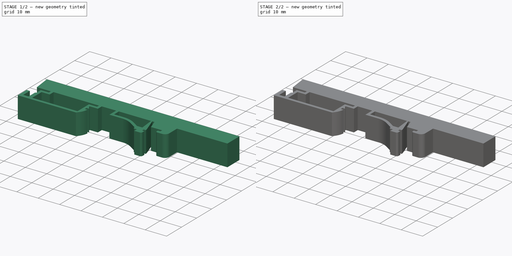
[diagram: build sequence overview — one tinted view per stage of 2, left to right]
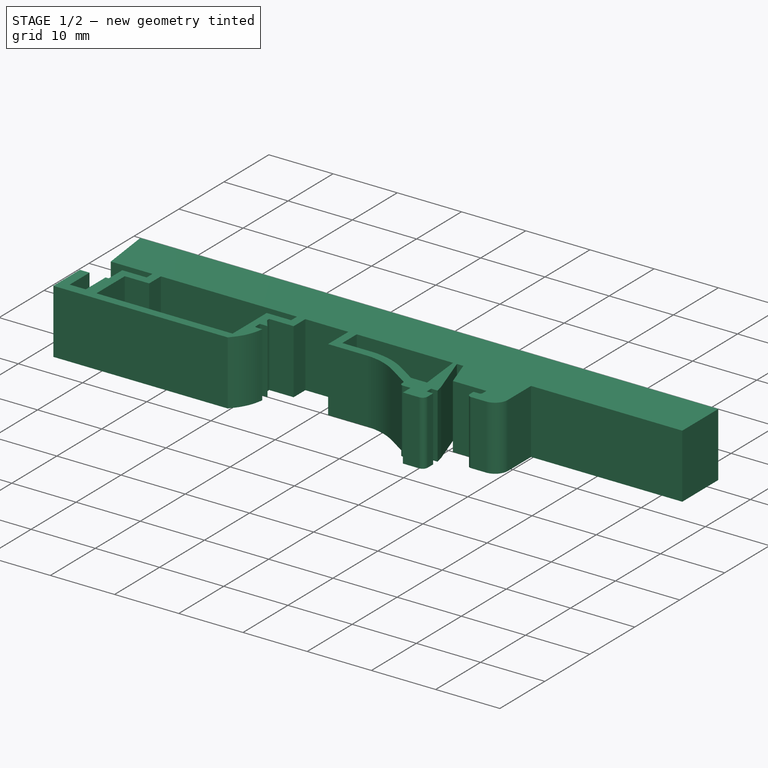
[diagram: stage 1 of 2 — iso view after this stage's code; geometry added in this stage tinted green]
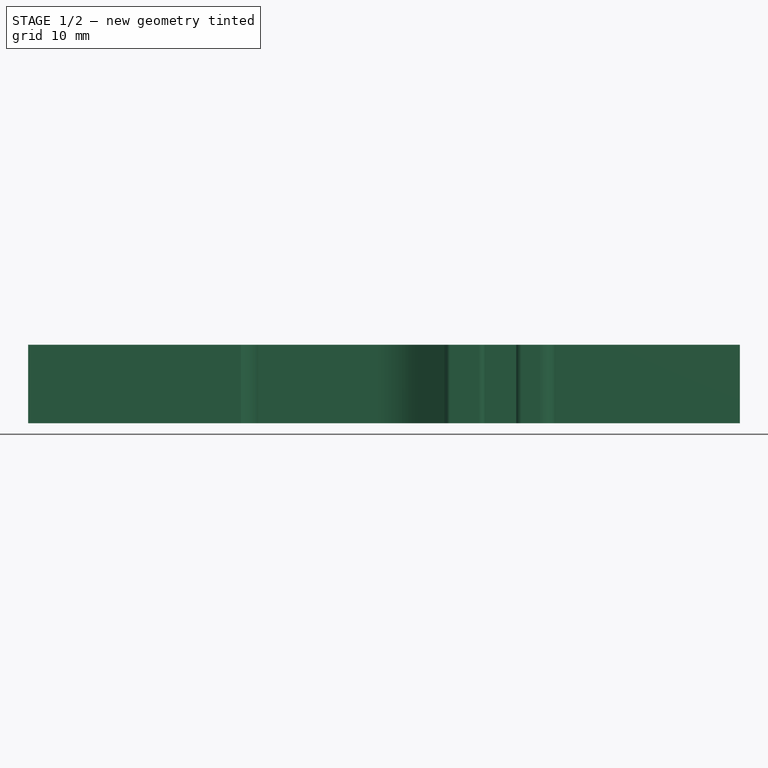
[diagram: stage 1 of 2 — front view after this stage's code; geometry added in this stage tinted green]
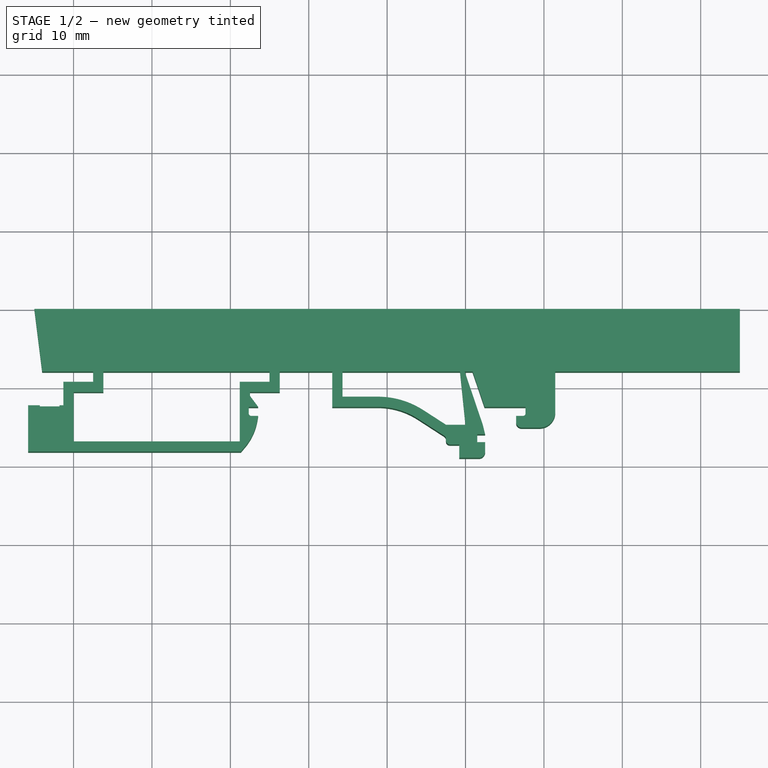
[diagram: stage 1 of 2 — top view after this stage's code; geometry added in this stage tinted green]
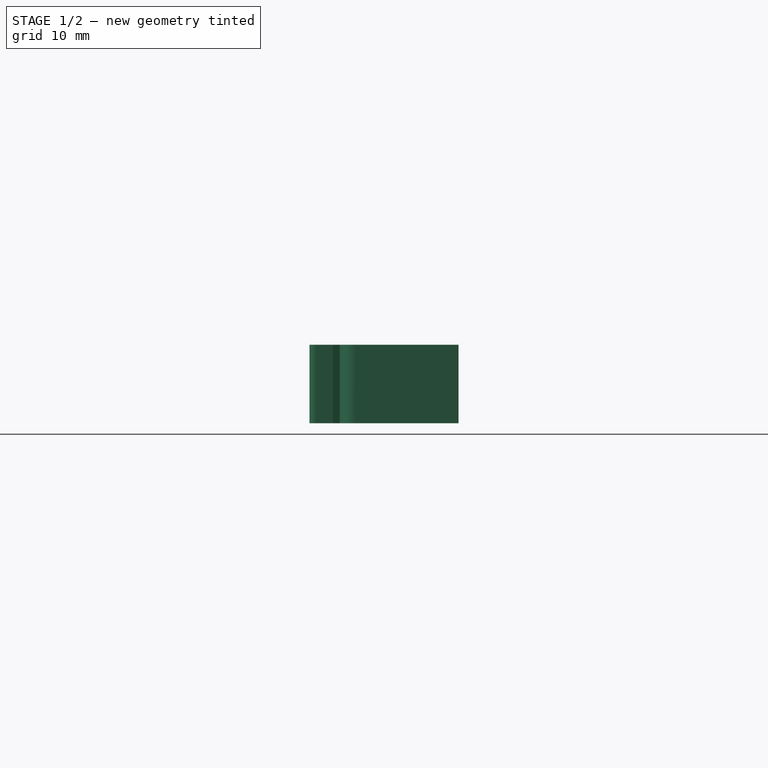
[diagram: stage 1 of 2 — right view after this stage's code; geometry added in this stage tinted green]
FCSTD DOCUMENT  (FreeCAD 1.0R38641 +468 (Git))
Label: PCB-adapter-90
License: All rights reserved
LicenseURL: https://en.wikipedia.org/wiki/All_rights_reserved
objects: Sketcher::SketchObject×3, PartDesign::SubShapeBinder×1, PartDesign::Pad×1, PartDesign::Pocket×1, PartDesign::Hole×1, PartDesign::Body×1
note: 17 computed .brp shape members not serialized (recipe doc carries the construction recipe); baked Part::Feature solids carry a one-line shape summary decoded from their .brp
EXTERNAL_REF file=DIN-rail.FCStd obj=Body
EXTERNAL_REF file=DIN-rail.FCStd obj=Sketch

FEATURE [PartDesign::SubShapeBinder] Binder
  BindCopyOnChange = 0
  BindMode = 0
  ClaimChildren = false
  Context = -> <external DIN-rail.FCStd>#Body [Binder.]
  Fuse = false
  MakeFace = true
  OffsetFill = false
  OffsetIntersection = false
  OffsetJoinType = 0
  OffsetOpenResult = false
  PartialLoad = false
  Refine = true
  Relative = true
  Support = -> [<external DIN-rail.FCStd>#Sketch]
  _Version = 2
FEATURE [Sketcher::SketchObject] Sketch
  ArcFitTolerance = 1e-06
  AttachmentSupport = -> [XY_Plane]
  ExternalGeometry = -> [Binder]
  FullyConstrained = false
  MakeInternals = false
  MapMode = 5
  sketch-geometry (80):
    g0: LineSegment StartX=45 StartY=12 StartZ=0 EndX=45 EndY=20 EndZ=0
    g1: LineSegment StartX=45 StartY=20 StartZ=0 EndX=-45 EndY=20 EndZ=0
    g2: LineSegment StartX=-45 StartY=20 StartZ=0 EndX=-44 EndY=12 EndZ=0
    g3: LineSegment StartX=-44 StartY=12 StartZ=0 EndX=-37.5 EndY=12 EndZ=0
    g4: LineSegment StartX=-37.5 StartY=12 StartZ=0 EndX=-37.5 EndY=10.7 EndZ=0
    g5: LineSegment StartX=-37.5 StartY=10.7 StartZ=0 EndX=-41.3 EndY=10.7 EndZ=0
    g6: LineSegment StartX=-41.3 StartY=10.7 StartZ=0 EndX=-41.3 EndY=7.7 EndZ=0
    g7: LineSegment StartX=-41.3 StartY=7.7 StartZ=0 EndX=-45.8 EndY=7.7 EndZ=0
    g8: LineSegment StartX=-45.8 StartY=7.7 StartZ=0 EndX=-45.8 EndY=1.8 EndZ=0
    g9: LineSegment StartX=-16.45 StartY=6.35 StartZ=0 EndX=-17.35 EndY=6.35 EndZ=0
    g10: LineSegment StartX=-17.65 StartY=6.65 StartZ=0 EndX=-17.65 EndY=7.5 EndZ=0
    g11: LineSegment StartX=-17.65 StartY=7.5 StartZ=0 EndX=-16.45 EndY=7.5 EndZ=0
    g12: LineSegment StartX=-16.45 StartY=7.5 StartZ=0 EndX=-17.5 EndY=8.9 EndZ=0
    g13: LineSegment StartX=-17.5 StartY=8.9 StartZ=0 EndX=-17.5 EndY=9.4 EndZ=0
    g14: LineSegment StartX=-17.5 StartY=9.4 StartZ=0 EndX=-13.7 EndY=9.4 EndZ=0
    g15: LineSegment StartX=-13.7 StartY=9.4 StartZ=0 EndX=-13.7 EndY=12 EndZ=0
    g16: LineSegment StartX=-13.7 StartY=12 StartZ=0 EndX=-7 EndY=12 EndZ=0
    g17: LineSegment StartX=-16.45 StartY=6.35 StartZ=0 EndX=-16.5547 EndY=5.75604 EndZ=0
    g18: LineSegment StartX=-18.0861 StartY=2.47206 StartZ=0 EndX=-18.65 EndY=1.8 EndZ=0
    g19: ArcOfCircle CenterX=-23.4484 CenterY=6.97157 CenterZ=0 NormalX=0 NormalY=0 NormalZ=1 AngleXU=0 Radius=7 StartAngle=5.58505 EndAngle=6.10865
    g20: GeomPoint [constr] X=-16.8804 Y=3.90889 Z=0
    g21: ArcOfCircle CenterX=-17.35 CenterY=6.65 CenterZ=0 NormalX=0 NormalY=0 NormalZ=1 AngleXU=0 Radius=0.3 StartAngle=3.14159 EndAngle=4.71239
    g22: GeomPoint [constr] X=-17.65 Y=6.35 Z=0
    g23: LineSegment StartX=-7 StartY=12 StartZ=0 EndX=-7 EndY=7.5 EndZ=0
    g24: LineSegment StartX=-7 StartY=7.5 StartZ=0 EndX=-1.2 EndY=7.5 EndZ=0
    g25: LineSegment StartX=3.91224 StartY=5.99147 StartZ=0 EndX=7.27145 EndY=3.8199 EndZ=0
    g26: LineSegment StartX=7.5 StartY=3.4 StartZ=0 EndX=7.5 EndY=3.2 EndZ=0
    g27: LineSegment StartX=8 StartY=2.7 StartZ=0 EndX=9.2 EndY=2.7 EndZ=0
    g28: LineSegment StartX=9.2 StartY=2.7 StartZ=0 EndX=9.2 EndY=1 EndZ=0
    g29: LineSegment StartX=9.2 StartY=1 StartZ=0 EndX=11.7 EndY=1 EndZ=0
    g30: LineSegment StartX=12.5 StartY=1.8 StartZ=0 EndX=12.5 EndY=3 EndZ=0
    g31: LineSegment StartX=12.5 StartY=3 StartZ=0 EndX=11.5 EndY=3 EndZ=0
    g32: LineSegment StartX=11.5 StartY=3 StartZ=0 EndX=11.5 EndY=4 EndZ=0
    g33: LineSegment StartX=11.5 StartY=4 StartZ=0 EndX=12.5 EndY=4 EndZ=0
    g34: LineSegment StartX=12.5 StartY=4 StartZ=0 EndX=12.2 EndY=5.22014 EndZ=0
    g35: LineSegment StartX=12.2 StartY=5.22014 StartZ=0 EndX=9.9 EndY=12 EndZ=0
    g36: ArcOfCircle CenterX=11.7 CenterY=1.8 CenterZ=0 NormalX=0 NormalY=0 NormalZ=1 AngleXU=0 Radius=0.8 StartAngle=4.71239 EndAngle=6.28319
    g37: GeomPoint [constr] X=12.5 Y=1 Z=0
    g38: ArcOfCircle CenterX=8 CenterY=3.2 CenterZ=0 NormalX=0 NormalY=0 NormalZ=1 AngleXU=0 Radius=0.5 StartAngle=3.14159 EndAngle=4.71239
    g39: GeomPoint [constr] X=7.5 Y=2.7 Z=0
    g40: ArcOfCircle CenterX=7 CenterY=3.4 CenterZ=0 NormalX=0 NormalY=0 NormalZ=1 AngleXU=0 Radius=0.5 StartAngle=0 EndAngle=0.996919
    g41: GeomPoint [constr] X=7.5 Y=3.67215 Z=0
    g42: ArcOfCircle CenterX=-1.2 CenterY=-1.91667 CenterZ=0 NormalX=0 NormalY=0 NormalZ=1 AngleXU=0 Radius=9.41667 StartAngle=0.996919 EndAngle=1.5708
    g43: GeomPoint [constr] X=1.57869 Y=7.5 Z=0
    g44: LineSegment StartX=-5.7 StartY=12 StartZ=0 EndX=-5.7 EndY=8.8 EndZ=0
    g45: LineSegment StartX=-5.7 StartY=8.8 StartZ=0 EndX=-1.2 EndY=8.8 EndZ=0
    g46: LineSegment StartX=4.618 StartY=7.08321 StartZ=0 EndX=7.5 EndY=5.22014 EndZ=0
    g47: LineSegment StartX=7.5 StartY=5.22014 StartZ=0 EndX=10 EndY=5.22014 EndZ=0
    g48: LineSegment StartX=10 StartY=5.22014 StartZ=0 EndX=9.3 EndY=12 EndZ=0
    g49: LineSegment StartX=9.3 StartY=12 StartZ=0 EndX=-5.7 EndY=12 EndZ=0
    g50: ArcOfCircle CenterX=-1.2 CenterY=-1.91667 CenterZ=0 NormalX=0 NormalY=0 NormalZ=1 AngleXU=0 Radius=10.7167 StartAngle=0.996919 EndAngle=1.5708
    g51: GeomPoint [constr] X=1.9623 Y=8.8 Z=0
    g52: LineSegment StartX=9.9 StartY=12 StartZ=0 EndX=10.9 EndY=12 EndZ=0
    g53: LineSegment StartX=10.9 StartY=12 StartZ=0 EndX=12.4266 EndY=7.5 EndZ=0
    g54: LineSegment StartX=12.4266 StartY=7.5 StartZ=0 EndX=17.65 EndY=7.5 EndZ=0
    g55: LineSegment StartX=17.65 StartY=7.5 StartZ=0 EndX=17.65 EndY=6.65 EndZ=0
    g56: LineSegment StartX=17.35 StartY=6.35 StartZ=0 EndX=16.45 EndY=6.35 EndZ=0
    g57: LineSegment StartX=16.45 StartY=6.35 StartZ=0 EndX=16.45 EndY=5.55 EndZ=0
    g58: LineSegment StartX=17.15 StartY=4.85 StartZ=0 EndX=19.45 EndY=4.85 EndZ=0
    g59: LineSegment StartX=21.45 StartY=6.85 StartZ=0 EndX=21.45 EndY=12 EndZ=0
    g60: ArcOfCircle CenterX=17.35 CenterY=6.65 CenterZ=0 NormalX=0 NormalY=0 NormalZ=1 AngleXU=0 Radius=0.3 StartAngle=4.71239 EndAngle=6.28319
    g61: GeomPoint [constr] X=17.65 Y=6.35 Z=0
    g62: ArcOfCircle CenterX=17.15 CenterY=5.55 CenterZ=0 NormalX=0 NormalY=0 NormalZ=1 AngleXU=0 Radius=0.7 StartAngle=3.14159 EndAngle=4.71239
    g63: GeomPoint [constr] X=16.45 Y=4.85 Z=0
    g64: ArcOfCircle CenterX=19.45 CenterY=6.85 CenterZ=0 NormalX=0 NormalY=0 NormalZ=1 AngleXU=0 Radius=2 StartAngle=4.71239 EndAngle=6.28319
    g65: GeomPoint [constr] X=21.45 Y=4.85 Z=0
    g66: LineSegment StartX=45 StartY=12 StartZ=0 EndX=21.45 EndY=12 EndZ=0
    g67: LineSegment StartX=-18.65 StartY=1.8 StartZ=0 EndX=-41.3 EndY=1.8 EndZ=0
    g68: LineSegment StartX=-41.3 StartY=1.8 StartZ=0 EndX=-45.8 EndY=1.8 EndZ=0
    g69: LineSegment StartX=-36.2 StartY=12 StartZ=0 EndX=-36.2 EndY=9.4 EndZ=0
    g70: LineSegment StartX=-36.2 StartY=9.4 StartZ=0 EndX=-40 EndY=9.4 EndZ=0
    g71: LineSegment StartX=-40 StartY=9.4 StartZ=0 EndX=-40 EndY=3.1 EndZ=0
    g72: LineSegment StartX=-40 StartY=3.1 StartZ=0 EndX=-18.8 EndY=3.1 EndZ=0
    g73: LineSegment StartX=-18.8 StartY=3.1 StartZ=0 EndX=-18.8 EndY=10.7 EndZ=0
    g74: LineSegment StartX=-18.8 StartY=10.7 StartZ=0 EndX=-15 EndY=10.7 EndZ=0
    g75: LineSegment StartX=-15 StartY=10.7 StartZ=0 EndX=-15 EndY=12 EndZ=0
    g76: LineSegment StartX=-15 StartY=12 StartZ=0 EndX=-36.2 EndY=12 EndZ=0
    g77: LineSegment [constr] StartX=-16.45 StartY=6.35 StartZ=0 EndX=-16.45 EndY=6.5 EndZ=0
    g78: LineSegment [constr] StartX=-17.65 StartY=7.18806 StartZ=0 EndX=-17.5 EndY=7.18806 EndZ=0
    g79: LineSegment [constr] StartX=17.5 StartY=7.075 StartZ=0 EndX=17.65 EndY=7.075 EndZ=0
  constraints (218):
    c: Coincident(g0,g1)
    c: Coincident(g1,g2)
    c: Vertical(g0)
    c: DistanceX(g1,g1) = 90
    c: DistanceY(g0,g0) = 8
    c: Symmetric(g0,g1,g-2)
    c: DistanceX(g1,g2) = 1
    c: DistanceY(g-4,g0) = 4.5
    c: Horizontal(g0,g2)
    c: Coincident(g2,g3)
    c: Horizontal(g3)
    c: Coincident(g3,g4)
    c: Vertical(g4)
    c: Coincident(g4,g5)
    c: Coincident(g5,g6)
    c: Vertical(g6)
    c: Coincident(g6,g7)
    c: Horizontal(g7)
    c: Coincident(g7,g8)
    c: Vertical(g8)
    c: Vertical(g10)
    c: Coincident(g10,g11)
    c: Coincident(g11,g12)
    c: Coincident(g12,g13)
    c: Coincident(g13,g14)
    c: Horizontal(g14)
    c: Coincident(g14,g15)
    c: Vertical(g15)
    c: Coincident(g15,g16)
    c: Horizontal(g16)
    c: Horizontal(g11)
    c: Horizontal(g5)
    c: DistanceX(g3,g3) = 6.5
    c: Horizontal(g15,g3)
    c: DistanceY(g14,g4) = 1.3
    c: Vertical(g13)
    c: Vertical(g12,g-7)
    c: PointOnObject(g11,g-8)
    c: DistanceX(g11,g11) = 1.2
    c: DistanceY(g13,g13) = 0.5
    c: Distance(g4,g4) = 1.3
    c: DistanceY(g6,g6) = 3
    c: DistanceY(g-1,g8) = 1.8
    c: DistanceX(g7,g7) = 4.5
    c: DistanceX(g22,g9) = 1.2
    c: PointOnObject(g20,g17)
    c: PointOnObject(g20,g18)
    c: Tangent(g17,g19) = 1.5708
    c: Tangent(g18,g19) = 1.5708
    c: Radius(g19) = 7
    c: Horizontal(g9)
    c: Angle(g17) = -1.74533
    c: Angle(g18) = -2.26893
    c: PointOnObject(g22,g9)
    c: PointOnObject(g22,g10)
    c: Tangent(g9,g21) = 1.5708
    c: Tangent(g10,g21) = 1.5708
    c: Radius(g21) = 0.3
    c: Coincident(g16,g23)
    c: Vertical(g23)
    c: Coincident(g23,g24)
    c: Horizontal(g24)
    c: Vertical(g26)
    c: Horizontal(g27)
    c: Coincident(g27,g28)
    c: PointOnObject(g28,g-11)
    c: Vertical(g28)
    c: Coincident(g28,g29)
    c: Coincident(g30,g31)
    c: Coincident(g31,g32)
    c: Coincident(g32,g33)
    c: Horizontal(g33)
    c: Coincident(g33,g34)
    c: Coincident(g34,g35)
    c: Horizontal(g35,g16)
    c: DistanceX(g15,g-1) = 13.7
    c: DistanceX(g16,g-1) = 7
    c: DistanceY(g23,g23) = 4.5
    c: PointOnObject(g33,g-9)
    c: PointOnObject(g30,g-9)
    c: Vertical(g30)
    c: Vertical(g32)
    c: Horizontal(g31)
    c: PointOnObject(g37,g30)
    c: PointOnObject(g37,g29)
    c: Tangent(g30,g36) = -1.5708
    c: Tangent(g29,g36) = -1.5708
    c: Radius(g36) = 0.8
    c: PointOnObject(g39,g27)
    c: PointOnObject(g39,g26)
    c: Tangent(g27,g38) = -1.5708
    c: Tangent(g26,g38) = -1.5708
    c: PointOnObject(g41,g26)
    c: PointOnObject(g41,g25)
    c: Tangent(g26,g40) = 1.5708
    c: Tangent(g25,g40) = 1.5708
    c: PointOnObject(g43,g25)
    c: PointOnObject(g43,g24)
    c: Tangent(g25,g42) = 1.5708
    c: Tangent(g24,g42) = 1.5708
    c: Vertical(g44)
    c: Coincident(g44,g45)
    c: Horizontal(g45)
    c: Coincident(g46,g47)
    c: Coincident(g47,g48)
    c: Coincident(g48,g49)
    c: Coincident(g49,g44)
    c: Horizontal(g49)
    c: Horizontal(g44,g16)
    c: DistanceX(g16,g44) = 1.3
    c: PointOnObject(g51,g45)
    c: PointOnObject(g51,g46)
    c: Tangent(g45,g50) = 1.5708
    c: Tangent(g46,g50) = 1.5708
    c: Coincident(g50,g42)
    c: DistanceY(g23,g44) = 1.3
    c: Parallel(g46,g25)
    c: DistanceX(g49,g49) = 15
    c: DistanceX(g48,g35) = 0.6
    c: DistanceX(g45,g45) = 4.5
    c: Vertical(g46,g41)
    c: Horizontal(g47)
    c: Horizontal(g34,g47)
    c: DistanceX(g28,g-9) = 3.3
    c: DistanceY(g28,g28) = 1.7
    c: DistanceX(g27,g27) = 1.2
    c: Radius(g38) = 0.5
    c: Radius(g40) = 0.5
    c: Distance(g26,g26) = 0.2
    c: Distance(g25,g25) = 4
    c: DistanceX(g47,g47) = 2.5
    c: DistanceX(g47,g34) = 2.2
    c: Distance(g33,g33) = 1
    c: DistanceY(g32,g32) = 1
    c: Distance(g31,g-11) = 2
    c: PointOnObject(g29,g-11)
    c: Coincident(g35,g52)
    c: Horizontal(g52)
    c: Coincident(g52,g53)
    c: Horizontal(g56)
    c: Coincident(g56,g57)
    c: Vertical(g57)
    c: Horizontal(g58)
    c: Vertical(g59)
    c: Distance(g52,g52) = 1
    c: Parallel(g35,g53)
    c: DistanceY(g63,g57) = 1.5
    c: DistanceX(g56,g61) = 1.2
    c: PointOnObject(g61,g55)
    c: PointOnObject(g61,g56)
    c: Tangent(g55,g60) = 1.5708
    c: Tangent(g56,g60) = 1.5708
    c: PointOnObject(g63,g57)
    c: PointOnObject(g63,g58)
    c: Tangent(g57,g62) = -1.5708
    c: Tangent(g58,g62) = -1.5708
    c: PointOnObject(g65,g58)
    c: PointOnObject(g65,g59)
    c: Tangent(g58,g64) = -1.5708
    c: Tangent(g59,g64) = -1.5708
    c: Radius(g64) = 2
    c: Radius(g62) = 0.7
    c: Radius(g60) = 0.3
    c: Coincident(g66,g0)
    c: Coincident(g66,g59)
    c: Horizontal(g66)
    c: DistanceX(g56,g59) = 5
    c: DistanceX(g5,g5) = 3.8
    c: Coincident(g67,g18)
    c: Horizontal(g67)
    c: Coincident(g68,g67)
    c: Horizontal(g68)
    c: Equal(g7,g68)
    c: Coincident(g68,g8)
    c: DistanceX(g18,g22) = 1
    c: Vertical(g69)
    c: Coincident(g69,g70)
    c: Coincident(g70,g71)
    c: Vertical(g71)
    c: Coincident(g71,g72)
    c: Horizontal(g72)
    c: Coincident(g72,g73)
    c: Coincident(g73,g74)
    c: Coincident(g74,g75)
    c: Coincident(g75,g76)
    c: Coincident(g76,g69)
    c: Horizontal(g76)
    c: Vertical(g73)
    c: Vertical(g75)
    c: Horizontal(g74)
    c: Horizontal(g70)
    c: Distance(g15,g75) = 1.3
    c: Distance(g14,g74) = 1.3
    c: Distance(g4,g69) = 1.3
    c: Distance(g5,g70) = 1.3
    c: Distance(g6,g71) = 1.3
    c: Distance(g67,g72) = 1.3
    c: Distance(g73,g13) = 1.3
    c: Horizontal(g75,g15)
    c: Coincident(g17,g9)
    c: Horizontal(g56,g9)
    c: Coincident(g77,g9)
    c: PointOnObject(g77,g-7)
    c: Vertical(g77)
    c: DistanceY(g77,g77) = 0.15
    c: PointOnObject(g78,g10)
    c: PointOnObject(g78,g-6)
    c: Horizontal(g78)
    c: Equal(g78,g77)
    c: Coincident(g55,g54)
    c: Horizontal(g54,g10)
    c: Horizontal(g54)
    c: Coincident(g53,g54)
    c: Vertical(g55)
    c: PointOnObject(g79,g-4)
    c: Symmetric(g55,g55,g79)
    c: Horizontal(g79)
    c: Equal(g79,g78)
FEATURE [PartDesign::Pad] Pad
  Direction = (0,0,1)
  Length = 10
  Length2 = 10
  Midplane = true
  Profile = -> Sketch
  ReferenceAxis = -> Sketch [N_Axis]
  Refine = true
  Suppressed = false
  Type = 0
FEATURE [Sketcher::SketchObject] Sketch001
  ArcFitTolerance = 1e-06
  AttachmentSupport = -> [Pad]
  ExternalGeometry = -> [Pad]
  FullyConstrained = true
  MakeInternals = false
  MapMode = 5
  Placement = pos=(0,0,5) rot=(0,0,1;0rad)
  sketch-geometry (4):
    g0: LineSegment StartX=-44.3 StartY=3.3 StartZ=0 EndX=-41.8 EndY=3.3 EndZ=0
    g1: LineSegment StartX=-41.8 StartY=3.3 StartZ=0 EndX=-41.8 EndY=7.7 EndZ=0
    g2: LineSegment StartX=-41.8 StartY=7.7 StartZ=0 EndX=-44.3 EndY=7.7 EndZ=0
    g3: LineSegment StartX=-44.3 StartY=7.7 StartZ=0 EndX=-44.3 EndY=3.3 EndZ=0
  constraints (12):
    c: Coincident(g0,g1)
    c: Coincident(g1,g2)
    c: Coincident(g2,g3)
    c: Coincident(g3,g0)
    c: Horizontal(g0)
    c: Horizontal(g2)
    c: Vertical(g1)
    c: Vertical(g3)
    c: PointOnObject(g1,g-3)
    c: DistanceX(g-4,g2) = 1.5
    c: DistanceY(g-5,g0) = 1.5
    c: DistanceX(g2,g2) = 2.5
FEATURE [PartDesign::Pocket] Pocket
  BaseFeature = -> Pad
  Direction = (0,0,-1)
  Length = 8
  Length2 = 5
  Profile = -> Sketch001
  ReferenceAxis = -> Sketch001 [N_Axis]
  Refine = true
  Suppressed = false
  Type = 0
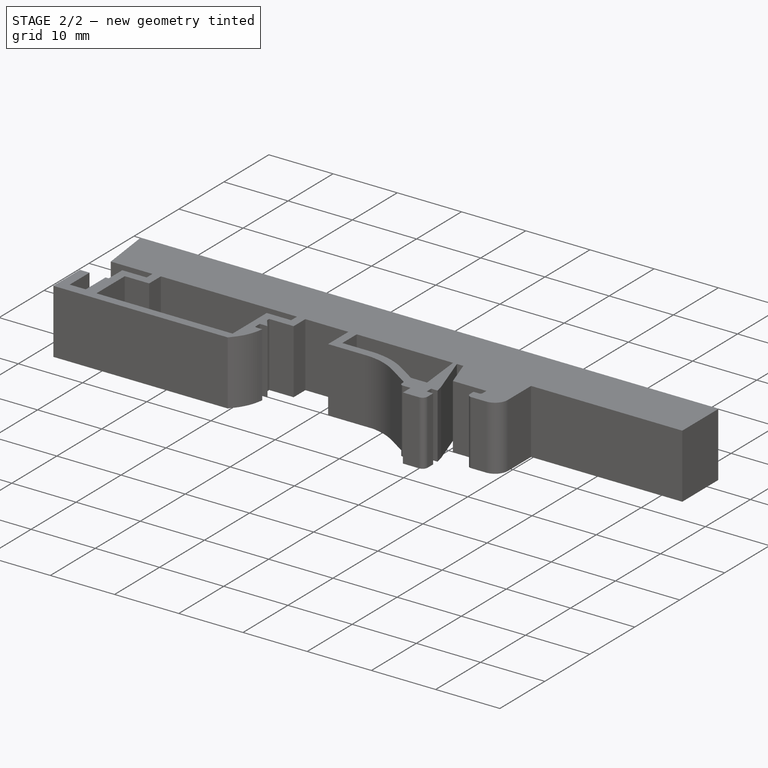
[diagram: stage 2 of 2 — iso view after this stage's code; geometry added in this stage tinted green]
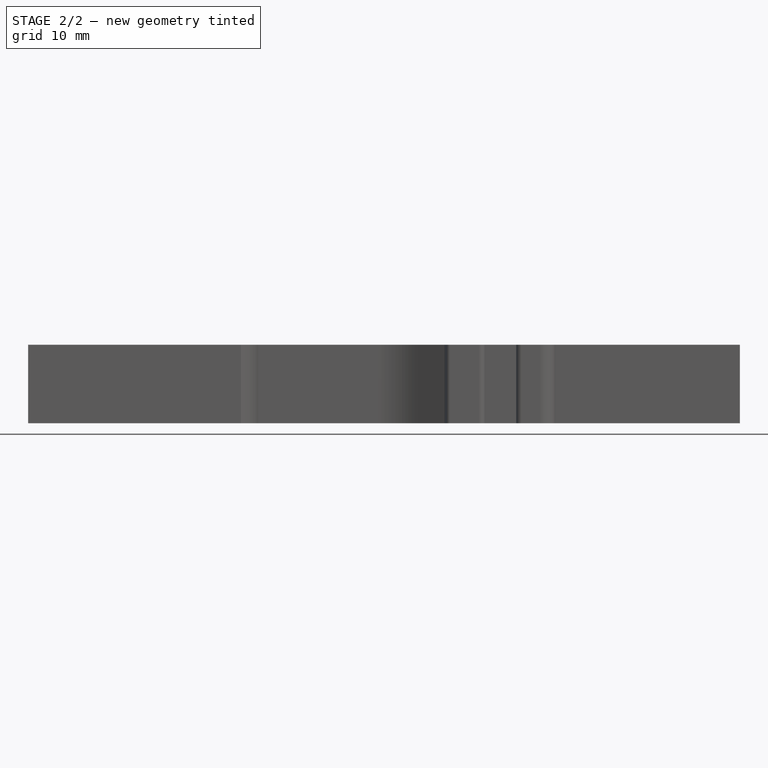
[diagram: stage 2 of 2 — front view after this stage's code; geometry added in this stage tinted green]
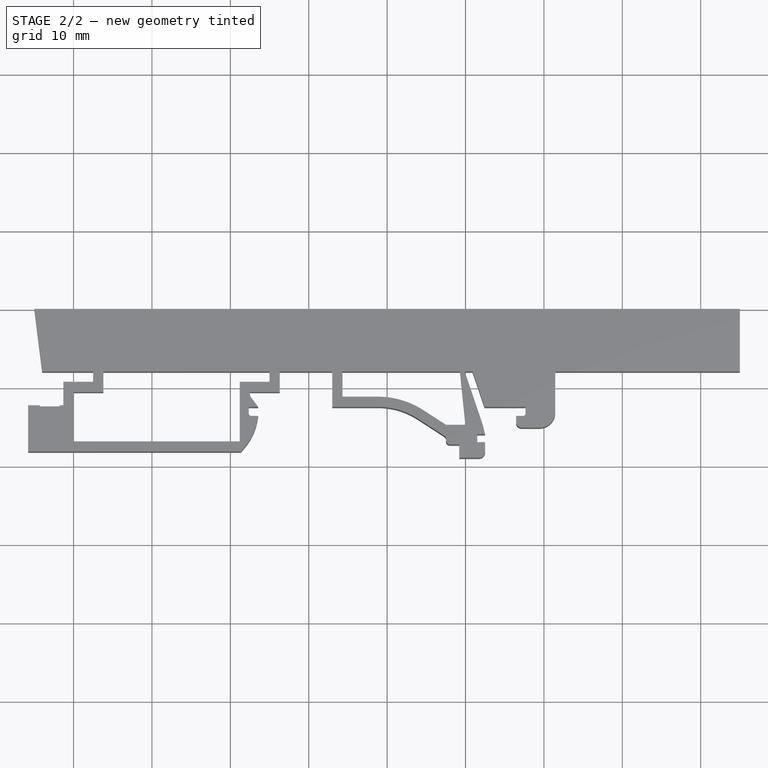
[diagram: stage 2 of 2 — top view after this stage's code; geometry added in this stage tinted green]
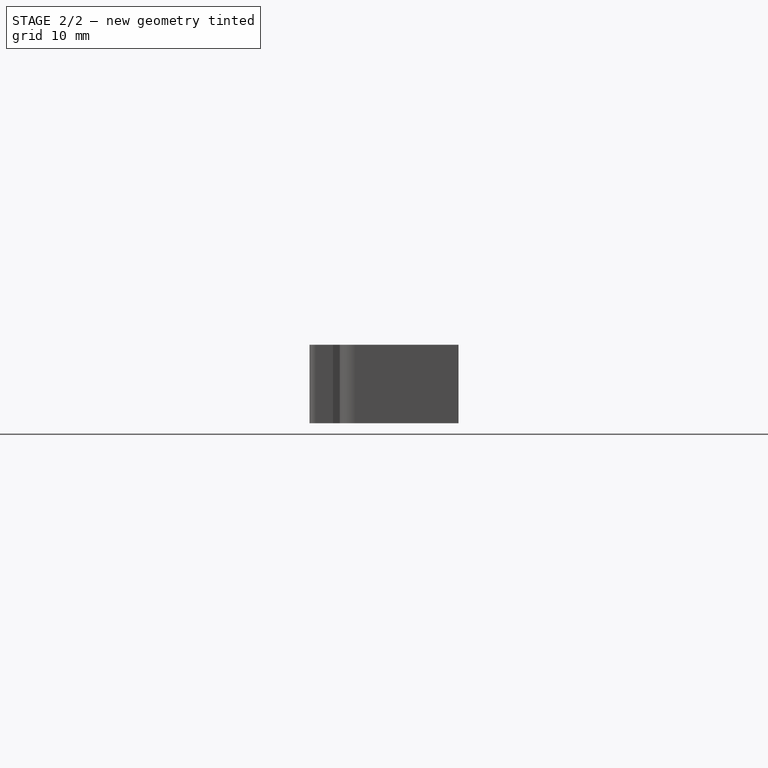
[diagram: stage 2 of 2 — right view after this stage's code; geometry added in this stage tinted green]
FEATURE [Sketcher::SketchObject] Sketch002
  ArcFitTolerance = 1e-06
  AttachmentSupport = -> [Pocket]
  FullyConstrained = true
  MakeInternals = false
  MapMode = 5
  Placement = pos=(0,20,0) rot=(0,0.707107,0.707107;3.14159rad)
  sketch-geometry (3):
    g0: Circle CenterX=-5e-16 CenterY=0 CenterZ=0 NormalX=0 NormalY=0 NormalZ=1 AngleXU=0 Radius=1.5
    g1: Circle CenterX=-37.5 CenterY=0 CenterZ=0 NormalX=0 NormalY=0 NormalZ=1 AngleXU=0 Radius=1.5
    g2: Circle CenterX=37.5 CenterY=0 CenterZ=0 NormalX=0 NormalY=0 NormalZ=1 AngleXU=0 Radius=1.5
  constraints (7):
    c: Coincident(g0,g-1)
    c: PointOnObject(g1,g-1)
    c: Symmetric(g2,g1,g0)
    c: Equal(g2,g0)
    c: Equal(g0,g1)
    c: Diameter(g0) = 3
    c: DistanceX(g1,g2) = 75
FEATURE [PartDesign::Hole] Hole
  BaseFeature = -> Pocket
  CustomThreadClearance = 0
  Depth = 7
  DepthType = 0
  Diameter = 2.5
  DrillForDepth = false
  DrillPoint = 1
  DrillPointAngle = 118
  HoleCutCountersinkAngle = 90
  HoleCutCustomValues = false
  HoleCutDepth = 0
  HoleCutDiameter = 6.1
  HoleCutType = 0
  ModelThread = false
  Profile = -> Sketch002
  Refine = true
  Suppressed = false
  Tapered = false
  TaperedAngle = 90
  ThreadClass = 0
  ThreadDepth = 7
  ThreadDepthType = 0
  ThreadDirection = 0
  ThreadFit = 0
  ThreadSize = 9
  ThreadType = 1
  Threaded = true
  UseCustomThreadClearance = false
FEATURE [PartDesign::Body] Body
  AllowCompound = false
  Group = -> [Sketch,Binder,Pad,Sketch001,Pocket,Sketch002,Hole]
  Origin = -> Origin
  Tip = -> Hole
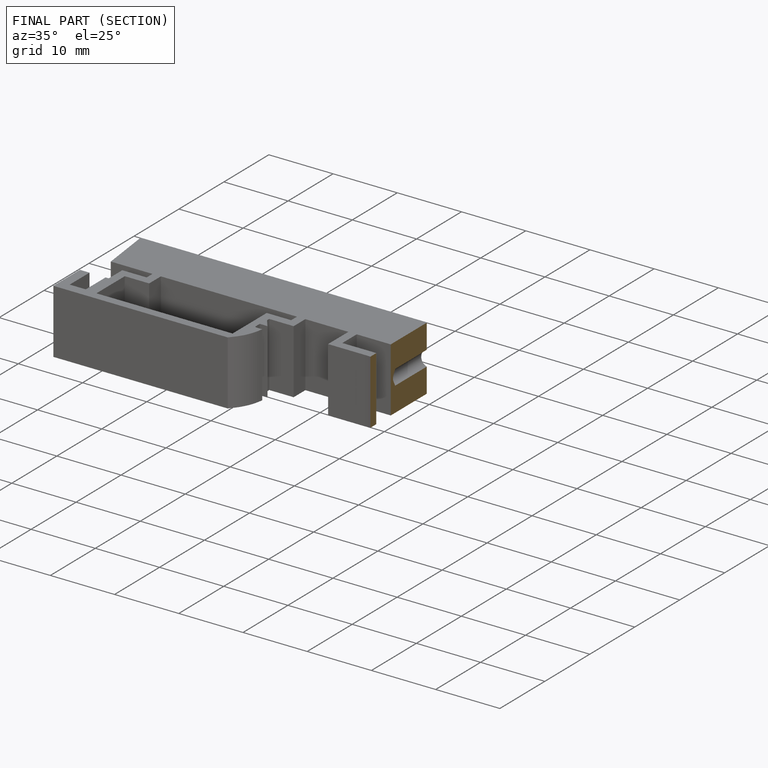
[diagram: finished part — half-section view (interior)]
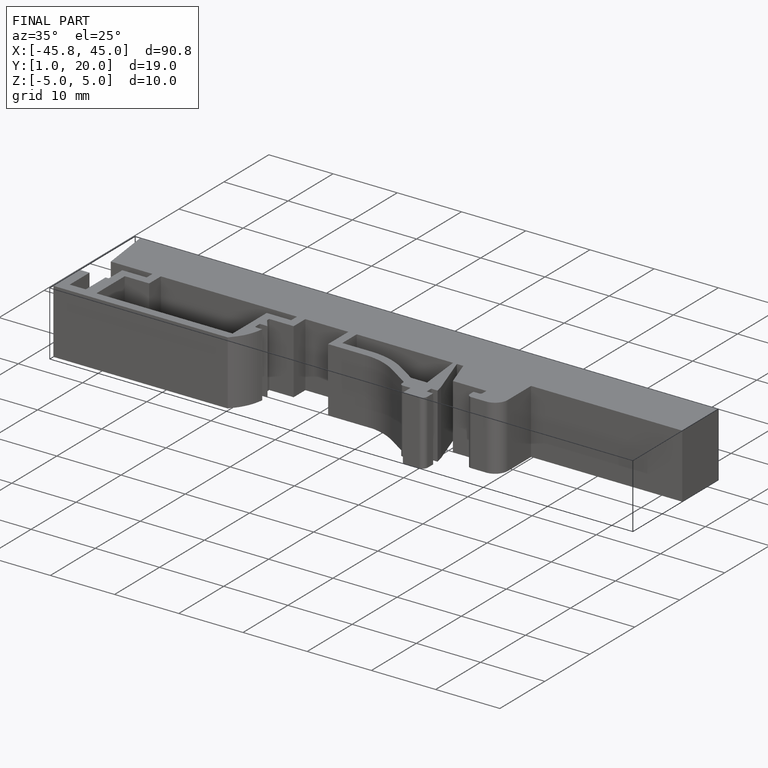
[diagram: finished part — iso view with bounding-box wireframe]
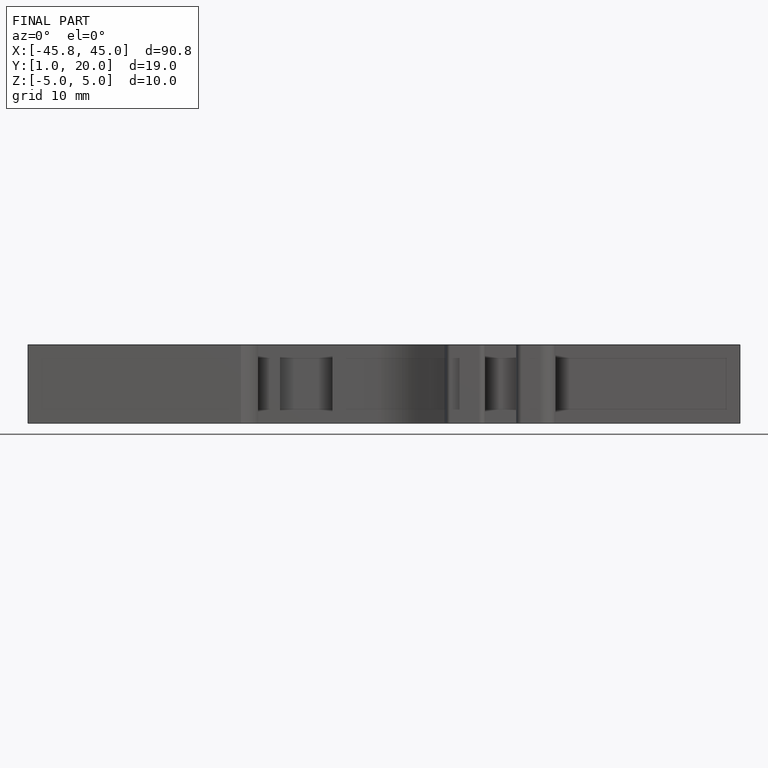
[diagram: finished part — front view with bounding-box wireframe]
